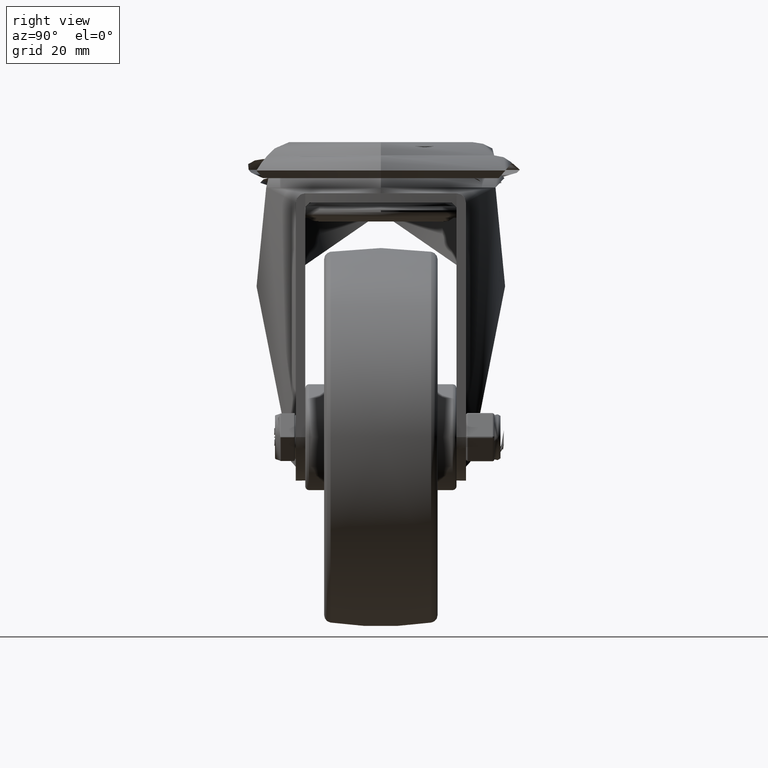
[diagram: clean part render]
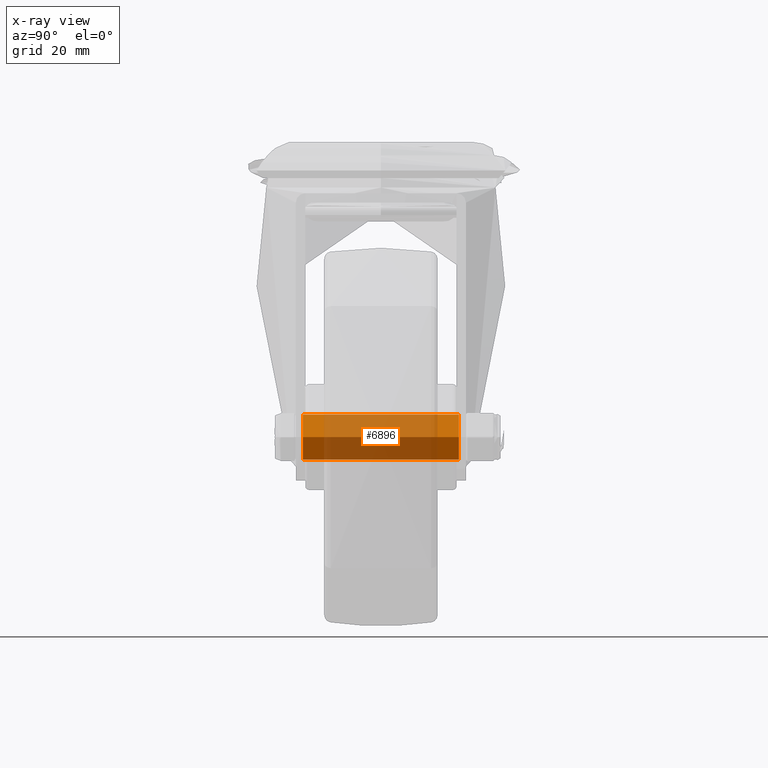
[diagram: x-ray — body ghosted, one internal face saturated and labeled with its STEP entity id]
A machine part, right view, then the same camera in x-ray: the body is ghosted and one INTERNAL B-rep face — a face not visible from any outside direction — is saturated and labeled: STEP entity #6896.
In plain terms, the highlighted cylindrical surface (bore or boss wall) has radius 5.95 mm, axis along (0, -1, 0).
Its self-contained STEP definition (entity closure, byte-faithful):
#880=FACE_OUTER_BOUND('',#1334,.T.);
#1334=EDGE_LOOP('',(#5538,#5539,#5540,#5541));
#1824=LINE('',#12268,#2298);
#2298=VECTOR('',#9159,5.95);
#2720=CIRCLE('',#7675,5.95);
#2721=CIRCLE('',#7676,5.95);
#3192=VERTEX_POINT('',#12265);
#3193=VERTEX_POINT('',#12267);
#4013=EDGE_CURVE('',#3192,#3192,#2720,.T.);
#4014=EDGE_CURVE('',#3192,#3193,#1824,.T.);
#4015=EDGE_CURVE('',#3193,#3193,#2721,.T.);
#5538=ORIENTED_EDGE('',*,*,#4013,.T.);
#5539=ORIENTED_EDGE('',*,*,#4014,.T.);
#5540=ORIENTED_EDGE('',*,*,#4015,.T.);
#5541=ORIENTED_EDGE('',*,*,#4014,.F.);
#6591=CYLINDRICAL_SURFACE('',#7674,5.95);
#6896=ADVANCED_FACE('',(#880),#6591,.T.);
#7674=AXIS2_PLACEMENT_3D('',#12264,#9155,#9156);
#7675=AXIS2_PLACEMENT_3D('',#12266,#9157,#9158);
#7676=AXIS2_PLACEMENT_3D('',#12269,#9160,#9161);
#9155=DIRECTION('center_axis',(0.,-1.,-3.49148336110938E-15));
#9156=DIRECTION('ref_axis',(1.,0.,0.));
#9157=DIRECTION('center_axis',(0.,1.,3.49148336110938E-15));
#9158=DIRECTION('ref_axis',(1.,0.,0.));
#9159=DIRECTION('',(0.,1.,3.49148336110938E-15));
#9160=DIRECTION('center_axis',(0.,-1.,-3.49148336110938E-15));
#9161=DIRECTION('ref_axis',(1.,0.,0.));
#12264=CARTESIAN_POINT('Origin',(0.,0.,0.));
#12265=CARTESIAN_POINT('',(-5.95,-20.625,-7.12831794773883E-14));
#12266=CARTESIAN_POINT('Origin',(0.,-20.625,-7.2011844322881E-14));
#12267=CARTESIAN_POINT('',(-5.95,20.625,7.27405091683737E-14));
#12268=CARTESIAN_POINT('',(-5.95,2.54412118386301E-30,-7.28664845492675E-16));
#12269=CARTESIAN_POINT('Origin',(0.,20.625,7.2011844322881E-14));